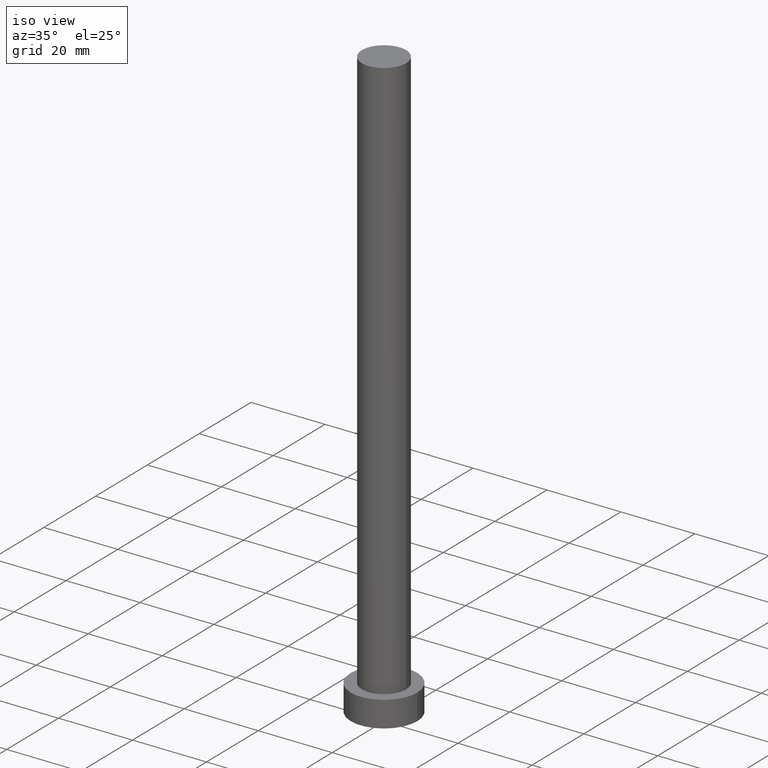
[diagram: clean part render]
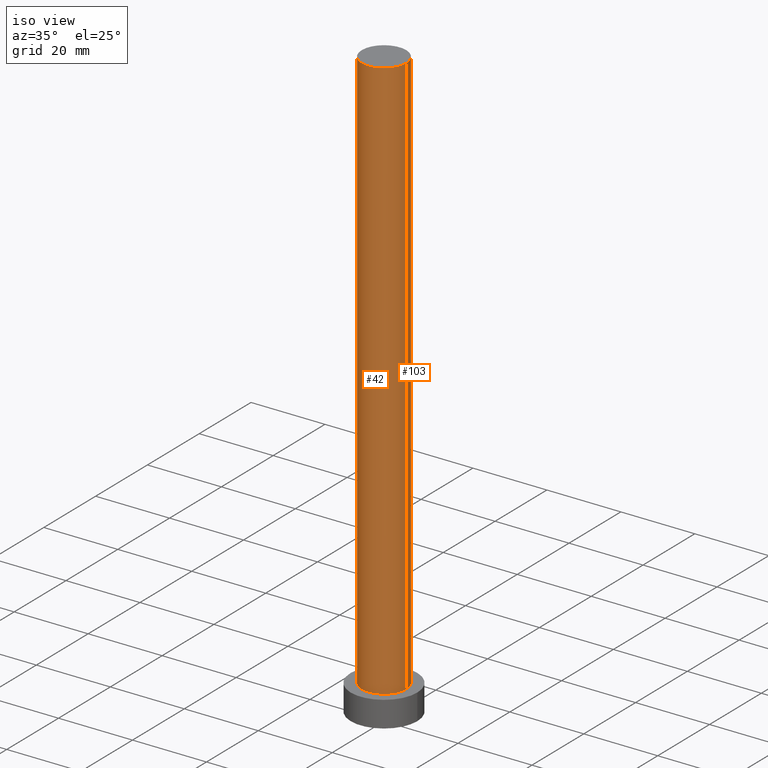
[diagram: same view with one multi-face feature highlighted, each face labeled with its STEP entity id]
A machine part, iso view. The highlighted faces form ONE feature: a constant-radius fillet chain: 2 tangent blend faces with common blend radius 6 mm. The faces share edges in the B-rep.
Their STEP definitions:
[1] entity #42 (Cylinder):
#12 = DIRECTION ( 'NONE',  ( -0.000000000000000000, -0.000000000000000000, -1.000000000000000000 ) ) ;
#13 = DIRECTION ( 'NONE',  ( 1.000000000000000000, 0.000000000000000000, 0.000000000000000000 ) ) ;
#14 = DIRECTION ( 'NONE',  ( 1.000000000000000000, 0.000000000000000000, 0.000000000000000000 ) ) ;
#15 = CARTESIAN_POINT ( 'NONE',  ( -6.000000000000000888, 0.000000000000000000, 160.0000000000000000 ) ) ;
#20 = EDGE_CURVE ( 'NONE', #222, #225, #141, .T. ) ;
#29 = CYLINDRICAL_SURFACE ( 'NONE', #93, 6.000000000000000888 ) ;
#42 = ADVANCED_FACE ( 'NONE', ( #91 ), #29, .T. ) ;
#48 = CARTESIAN_POINT ( 'NONE',  ( 0.000000000000000000, 0.000000000000000000, 160.0000000000000000 ) ) ;
#50 = DIRECTION ( 'NONE',  ( -0.000000000000000000, -0.000000000000000000, -1.000000000000000000 ) ) ;
#51 = CARTESIAN_POINT ( 'NONE',  ( 0.000000000000000000, 0.000000000000000000, 160.0000000000000000 ) ) ;
#55 = VERTEX_POINT ( 'NONE', #213 ) ;
#56 = CARTESIAN_POINT ( 'NONE',  ( -6.000000000000000888, 0.000000000000000000, 160.0000000000000000 ) ) ;
#59 = ORIENTED_EDGE ( 'NONE', *, *, #96, .T. ) ;
#66 = ORIENTED_EDGE ( 'NONE', *, *, #20, .F. ) ;
#67 = VECTOR ( 'NONE', #12, 1000.000000000000000 ) ;
#72 = DIRECTION ( 'NONE',  ( -1.000000000000000000, 0.000000000000000000, 0.000000000000000000 ) ) ;
#80 = AXIS2_PLACEMENT_3D ( 'NONE', #190, #188, #14 ) ;
#91 = FACE_OUTER_BOUND ( 'NONE', #232, .T. ) ;
#92 = EDGE_CURVE ( 'NONE', #225, #139, #252, .T. ) ;
#93 = AXIS2_PLACEMENT_3D ( 'NONE', #48, #50, #72 ) ;
#96 = EDGE_CURVE ( 'NONE', #55, #139, #216, .T. ) ;
#106 = CARTESIAN_POINT ( 'NONE',  ( 6.000000000000000888, 7.347880794884120722E-16, 160.0000000000000000 ) ) ;
#107 = DIRECTION ( 'NONE',  ( 0.000000000000000000, 0.000000000000000000, 1.000000000000000000 ) ) ;
#110 = LINE ( 'NONE', #56, #253 ) ;
#124 = AXIS2_PLACEMENT_3D ( 'NONE', #51, #107, #13 ) ;
#128 = DIRECTION ( 'NONE',  ( -0.000000000000000000, -0.000000000000000000, -1.000000000000000000 ) ) ;
#131 = EDGE_CURVE ( 'NONE', #222, #55, #110, .T. ) ;
#137 = ORIENTED_EDGE ( 'NONE', *, *, #131, .T. ) ;
#139 = VERTEX_POINT ( 'NONE', #193 ) ;
#141 = CIRCLE ( 'NONE', #124, 6.000000000000000888 ) ;
#144 = CARTESIAN_POINT ( 'NONE',  ( 6.000000000000000888, 7.347880794884120722E-16, 160.0000000000000000 ) ) ;
#188 = DIRECTION ( 'NONE',  ( 0.000000000000000000, 0.000000000000000000, 1.000000000000000000 ) ) ;
#190 = CARTESIAN_POINT ( 'NONE',  ( 0.000000000000000000, 0.000000000000000000, 7.000000000000000000 ) ) ;
#193 = CARTESIAN_POINT ( 'NONE',  ( 6.000000000000000888, 7.347880794884120722E-16, 7.000000000000000000 ) ) ;
#213 = CARTESIAN_POINT ( 'NONE',  ( -6.000000000000000888, 0.000000000000000000, 7.000000000000000000 ) ) ;
#216 = CIRCLE ( 'NONE', #80, 6.000000000000000888 ) ;
#222 = VERTEX_POINT ( 'NONE', #15 ) ;
#225 = VERTEX_POINT ( 'NONE', #144 ) ;
#232 = EDGE_LOOP ( 'NONE', ( #239, #66, #137, #59 ) ) ;
#239 = ORIENTED_EDGE ( 'NONE', *, *, #92, .F. ) ;
#252 = LINE ( 'NONE', #106, #67 ) ;
#253 = VECTOR ( 'NONE', #128, 1000.000000000000000 ) ;
[2] entity #103 (Cylinder):
#12 = DIRECTION ( 'NONE',  ( -0.000000000000000000, -0.000000000000000000, -1.000000000000000000 ) ) ;
#15 = CARTESIAN_POINT ( 'NONE',  ( -6.000000000000000888, 0.000000000000000000, 160.0000000000000000 ) ) ;
#18 = DIRECTION ( 'NONE',  ( 1.000000000000000000, 0.000000000000000000, 0.000000000000000000 ) ) ;
#31 = DIRECTION ( 'NONE',  ( 0.000000000000000000, 0.000000000000000000, 1.000000000000000000 ) ) ;
#54 = ORIENTED_EDGE ( 'NONE', *, *, #61, .T. ) ;
#55 = VERTEX_POINT ( 'NONE', #213 ) ;
#56 = CARTESIAN_POINT ( 'NONE',  ( -6.000000000000000888, 0.000000000000000000, 160.0000000000000000 ) ) ;
#61 = EDGE_CURVE ( 'NONE', #139, #55, #85, .T. ) ;
#62 = AXIS2_PLACEMENT_3D ( 'NONE', #101, #31, #18 ) ;
#63 = EDGE_LOOP ( 'NONE', ( #206, #70, #54, #98 ) ) ;
#67 = VECTOR ( 'NONE', #12, 1000.000000000000000 ) ;
#70 = ORIENTED_EDGE ( 'NONE', *, *, #92, .T. ) ;
#73 = CIRCLE ( 'NONE', #154, 6.000000000000000888 ) ;
#85 = CIRCLE ( 'NONE', #62, 6.000000000000000888 ) ;
#87 = DIRECTION ( 'NONE',  ( 1.000000000000000000, 0.000000000000000000, 0.000000000000000000 ) ) ;
#92 = EDGE_CURVE ( 'NONE', #225, #139, #252, .T. ) ;
#94 = CARTESIAN_POINT ( 'NONE',  ( 0.000000000000000000, 0.000000000000000000, 160.0000000000000000 ) ) ;
#97 = AXIS2_PLACEMENT_3D ( 'NONE', #94, #164, #143 ) ;
#98 = ORIENTED_EDGE ( 'NONE', *, *, #131, .F. ) ;
#101 = CARTESIAN_POINT ( 'NONE',  ( 0.000000000000000000, 0.000000000000000000, 7.000000000000000000 ) ) ;
#103 = ADVANCED_FACE ( 'NONE', ( #210 ), #233, .T. ) ;
#106 = CARTESIAN_POINT ( 'NONE',  ( 6.000000000000000888, 7.347880794884120722E-16, 160.0000000000000000 ) ) ;
#110 = LINE ( 'NONE', #56, #253 ) ;
#111 = EDGE_CURVE ( 'NONE', #225, #222, #73, .T. ) ;
#121 = CARTESIAN_POINT ( 'NONE',  ( 0.000000000000000000, 0.000000000000000000, 160.0000000000000000 ) ) ;
#128 = DIRECTION ( 'NONE',  ( -0.000000000000000000, -0.000000000000000000, -1.000000000000000000 ) ) ;
#131 = EDGE_CURVE ( 'NONE', #222, #55, #110, .T. ) ;
#139 = VERTEX_POINT ( 'NONE', #193 ) ;
#143 = DIRECTION ( 'NONE',  ( -1.000000000000000000, 0.000000000000000000, 0.000000000000000000 ) ) ;
#144 = CARTESIAN_POINT ( 'NONE',  ( 6.000000000000000888, 7.347880794884120722E-16, 160.0000000000000000 ) ) ;
#154 = AXIS2_PLACEMENT_3D ( 'NONE', #121, #203, #87 ) ;
#164 = DIRECTION ( 'NONE',  ( -0.000000000000000000, -0.000000000000000000, -1.000000000000000000 ) ) ;
#193 = CARTESIAN_POINT ( 'NONE',  ( 6.000000000000000888, 7.347880794884120722E-16, 7.000000000000000000 ) ) ;
#203 = DIRECTION ( 'NONE',  ( 0.000000000000000000, 0.000000000000000000, 1.000000000000000000 ) ) ;
#206 = ORIENTED_EDGE ( 'NONE', *, *, #111, .F. ) ;
#210 = FACE_OUTER_BOUND ( 'NONE', #63, .T. ) ;
#213 = CARTESIAN_POINT ( 'NONE',  ( -6.000000000000000888, 0.000000000000000000, 7.000000000000000000 ) ) ;
#222 = VERTEX_POINT ( 'NONE', #15 ) ;
#225 = VERTEX_POINT ( 'NONE', #144 ) ;
#233 = CYLINDRICAL_SURFACE ( 'NONE', #97, 6.000000000000000888 ) ;
#252 = LINE ( 'NONE', #106, #67 ) ;
#253 = VECTOR ( 'NONE', #128, 1000.000000000000000 ) ;